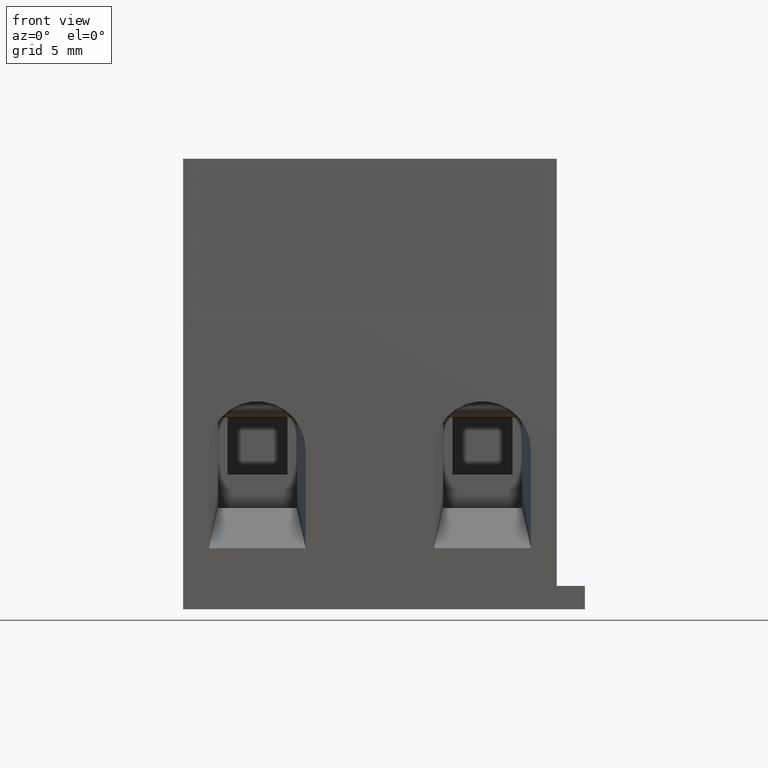
[diagram: clean part render]
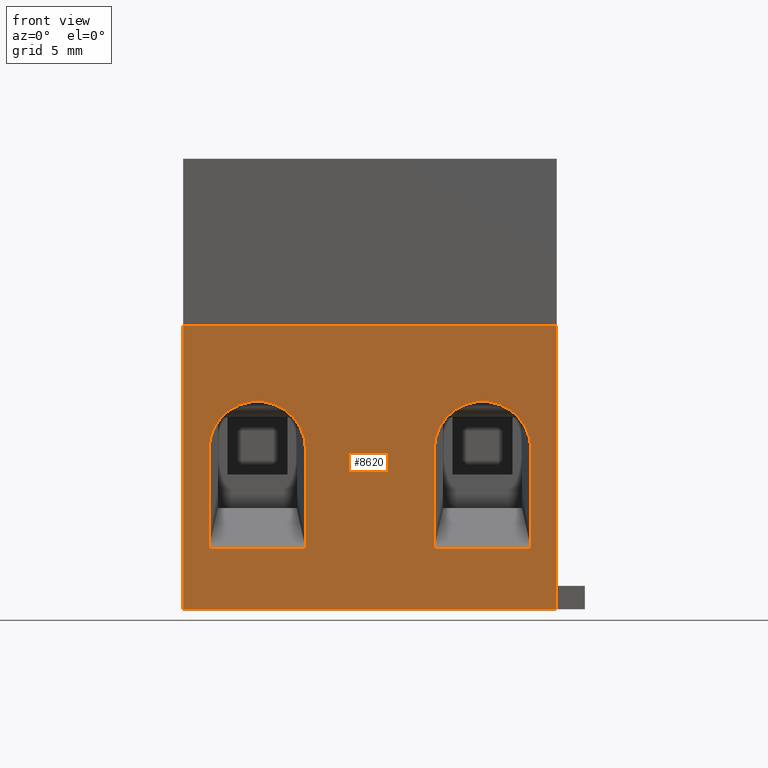
[diagram: same view with one face highlighted and labeled with its STEP entity id]
A machine part, front view. The second image highlights one B-rep face of the part: STEP entity #8620.
In plain terms, the highlighted planar face has unit normal (0, 1, 0).
Its self-contained STEP definition (entity closure, byte-faithful):
#120=CARTESIAN_POINT('',(38.4040807462834,0.156191000000002,
0.0499999999999936));
#130=VERTEX_POINT('',#120);
#720=CARTESIAN_POINT('',(38.4040807462834,15.2484910987167,
0.0499999999999936));
#730=VERTEX_POINT('',#720);
#760=CARTESIAN_POINT('',(38.404081,2.156191,0.0499999999999936));
#770=DIRECTION('',(0.,1.,0.));
#780=VECTOR('',#770,1.);
#790=LINE('',#760,#780);
#800=EDGE_CURVE('',#130,#730,#790,.T.);
#970=CARTESIAN_POINT('',(38.404081,2.156191,19.95));
#980=DIRECTION('',(0.,1.,0.));
#990=VECTOR('',#980,1.);
#1000=LINE('',#970,#990);
#1010=CARTESIAN_POINT('',(38.4040807462834,0.156191000000002,19.95));
#1020=VERTEX_POINT('',#1010);
#1030=CARTESIAN_POINT('',(38.4040807462834,15.2484910987167,19.95));
#1040=VERTEX_POINT('',#1030);
#1050=EDGE_CURVE('',#1020,#1040,#1000,.T.);
#2400=CARTESIAN_POINT('',(38.4040807462834,8.65751827020299,13.425));
#2410=VERTEX_POINT('',#2400);
#2490=CARTESIAN_POINT('',(38.4040807462834,3.40851411267612,13.425));
#2500=VERTEX_POINT('',#2490);
#2530=CARTESIAN_POINT('',(38.4040807462834,13.156191,13.4249999552629));
#2540=DIRECTION('',(0.,1.,0.));
#2550=VECTOR('',#2540,1.);
#2560=LINE('',#2530,#2550);
#2570=EDGE_CURVE('',#2500,#2410,#2560,.T.);
#7800=CARTESIAN_POINT('',(38.4040807462834,0.156191000000003,19.95));
#7810=DIRECTION('',(1.,0.,0.));
#7820=DIRECTION('',(0.,-1.,0.));
#7830=AXIS2_PLACEMENT_3D('',#7800,#7810,#7820);
#7840=PLANE('',#7830);
#7850=CARTESIAN_POINT('',(38.4040807462834,8.65751827020299,4.));
#7860=DIRECTION('',(1.,0.,0.));
#7870=DIRECTION('',(0.,0.,1.));
#7880=AXIS2_PLACEMENT_3D('',#7850,#7860,#7870);
#7890=CIRCLE('',#7880,2.57499999999999);
#7900=CARTESIAN_POINT('',(38.4040807462834,8.65751827020299,
1.42500000000001));
#7910=VERTEX_POINT('',#7900);
#7920=CARTESIAN_POINT('',(38.4040807462834,8.65751827020299,6.575));
#7930=VERTEX_POINT('',#7920);
#7940=EDGE_CURVE('',#7910,#7930,#7890,.T.);
#7950=ORIENTED_EDGE('',*,*,#7940,.T.);
#7960=CARTESIAN_POINT('',(38.4040807462834,13.156191,1.42499995526292));
#7970=DIRECTION('',(0.,1.,0.));
#7980=VECTOR('',#7970,1.);
#7990=LINE('',#7960,#7980);
#8000=CARTESIAN_POINT('',(38.4040807462834,3.40851411267612,1.425));
#8010=VERTEX_POINT('',#8000);
#8020=EDGE_CURVE('',#8010,#7910,#7990,.T.);
#8030=ORIENTED_EDGE('',*,*,#8020,.T.);
#8040=CARTESIAN_POINT('',(38.4040807462834,3.40851411267612,19.95));
#8050=DIRECTION('',(0.,-3.31166725986915E-17,-1.));
#8060=VECTOR('',#8050,1.);
#8070=LINE('',#8040,#8060);
#8080=CARTESIAN_POINT('',(38.4040807462834,3.4085143144914,
6.57500004473708));
#8090=VERTEX_POINT('',#8080);
#8100=EDGE_CURVE('',#8090,#8010,#8070,.T.);
#8110=ORIENTED_EDGE('',*,*,#8100,.T.);
#8120=CARTESIAN_POINT('',(38.4040807462834,13.156191,6.57500004473708));
#8130=DIRECTION('',(0.,1.,0.));
#8140=VECTOR('',#8130,1.);
#8150=LINE('',#8120,#8140);
#8160=EDGE_CURVE('',#8090,#7930,#8150,.T.);
#8170=ORIENTED_EDGE('',*,*,#8160,.F.);
#8180=EDGE_LOOP('',(#8170,#8110,#8030,#7950));
#8190=FACE_BOUND('',#8180,.T.);
#8200=CARTESIAN_POINT('',(38.4040807462834,13.156191,18.5750000447371));
#8210=DIRECTION('',(0.,1.,0.));
#8220=VECTOR('',#8210,1.);
#8230=LINE('',#8200,#8220);
#8240=CARTESIAN_POINT('',(38.4040807462834,3.4085143144914,
18.5750000447371));
#8250=VERTEX_POINT('',#8240);
#8260=CARTESIAN_POINT('',(38.4040807462834,8.65751827020299,18.575));
#8270=VERTEX_POINT('',#8260);
#8280=EDGE_CURVE('',#8250,#8270,#8230,.T.);
#8290=ORIENTED_EDGE('',*,*,#8280,.F.);
#8300=CARTESIAN_POINT('',(38.4040807462834,8.65751827020299,16.));
#8310=DIRECTION('',(1.,0.,0.));
#8320=DIRECTION('',(0.,0.,1.));
#8330=AXIS2_PLACEMENT_3D('',#8300,#8310,#8320);
#8340=CIRCLE('',#8330,2.57499999999999);
#8350=EDGE_CURVE('',#2410,#8270,#8340,.T.);
#8360=ORIENTED_EDGE('',*,*,#8350,.T.);
#8370=ORIENTED_EDGE('',*,*,#2570,.T.);
#8380=CARTESIAN_POINT('',(38.4040807462834,3.40851411267612,19.95));
#8390=DIRECTION('',(0.,-3.31166725986915E-17,-1.));
#8400=VECTOR('',#8390,1.);
#8410=LINE('',#8380,#8400);
#8420=EDGE_CURVE('',#8250,#2500,#8410,.T.);
#8430=ORIENTED_EDGE('',*,*,#8420,.T.);
#8440=EDGE_LOOP('',(#8430,#8370,#8360,#8290));
#8450=FACE_BOUND('',#8440,.T.);
#8460=ORIENTED_EDGE('',*,*,#1050,.T.);
#8470=CARTESIAN_POINT('',(38.4040807462834,0.156191000000003,19.95));
#8480=DIRECTION('',(0.,0.,-1.));
#8490=VECTOR('',#8480,1.);
#8500=LINE('',#8470,#8490);
#8510=EDGE_CURVE('',#1020,#130,#8500,.T.);
#8520=ORIENTED_EDGE('',*,*,#8510,.F.);
#8530=ORIENTED_EDGE('',*,*,#800,.F.);
#8540=CARTESIAN_POINT('',(38.404081,15.2484910987167,19.95));
#8550=DIRECTION('',(0.,0.,-1.));
#8560=VECTOR('',#8550,1.);
#8570=LINE('',#8540,#8560);
#8580=EDGE_CURVE('',#1040,#730,#8570,.T.);
#8590=ORIENTED_EDGE('',*,*,#8580,.T.);
#8600=EDGE_LOOP('',(#8590,#8530,#8520,#8460));
#8610=FACE_OUTER_BOUND('',#8600,.T.);
#8620=ADVANCED_FACE('',(#8190,#8450,#8610),#7840,.F.);